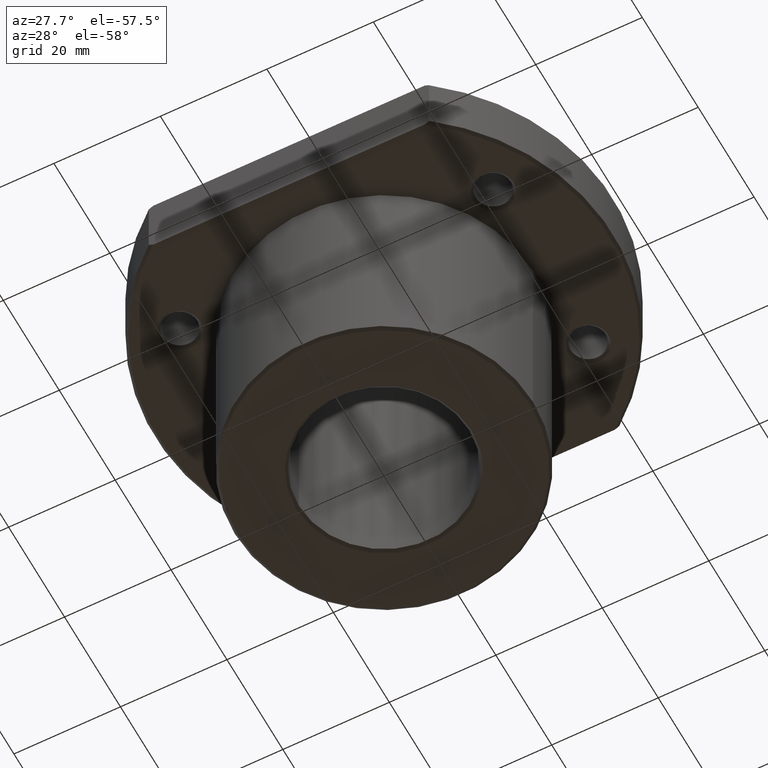
[diagram: clean part render]
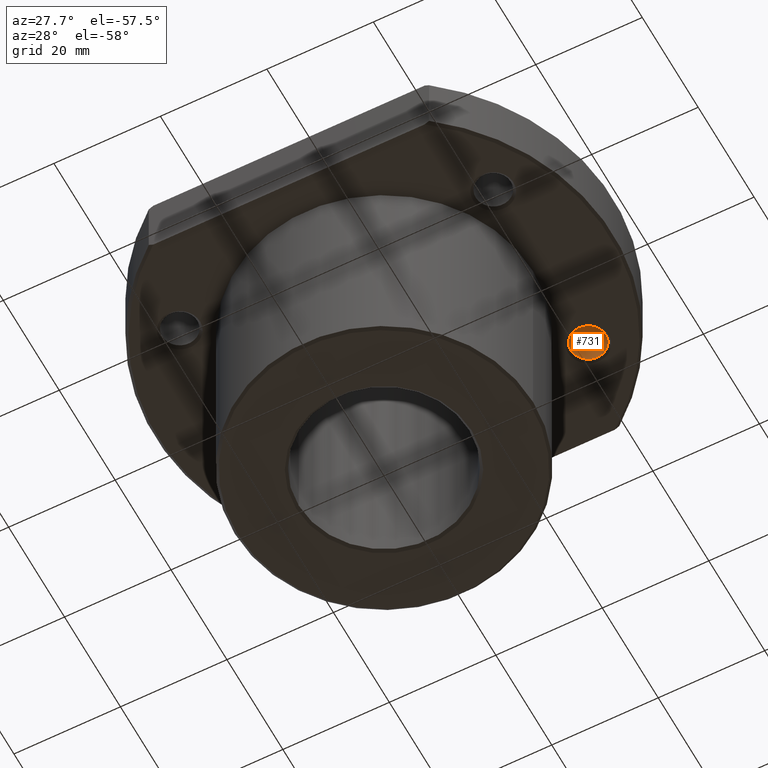
[diagram: same view with one face highlighted and labeled with its STEP entity id]
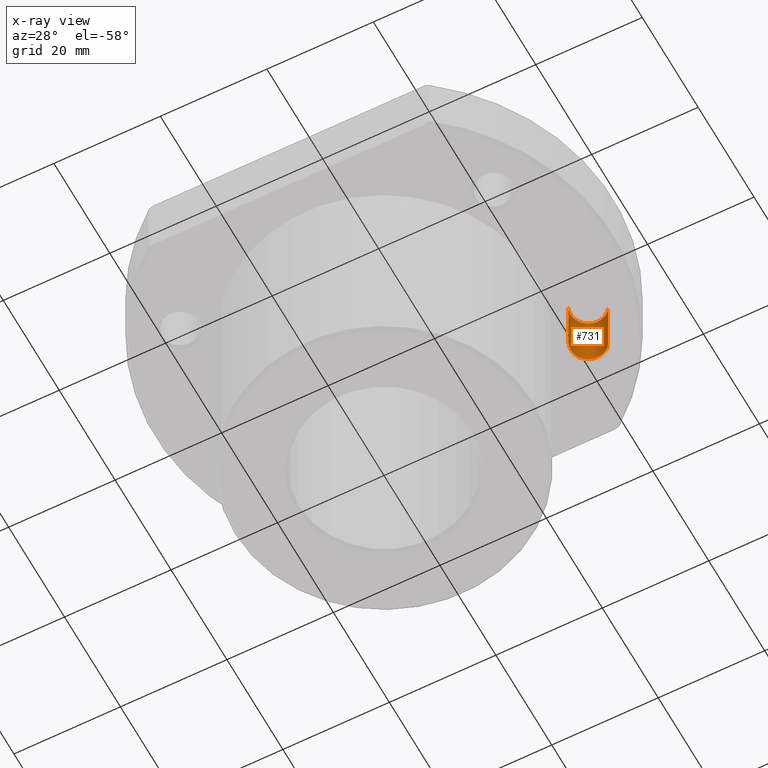
[diagram: x-ray of the same camera — body ghosted, the highlighted face saturated]
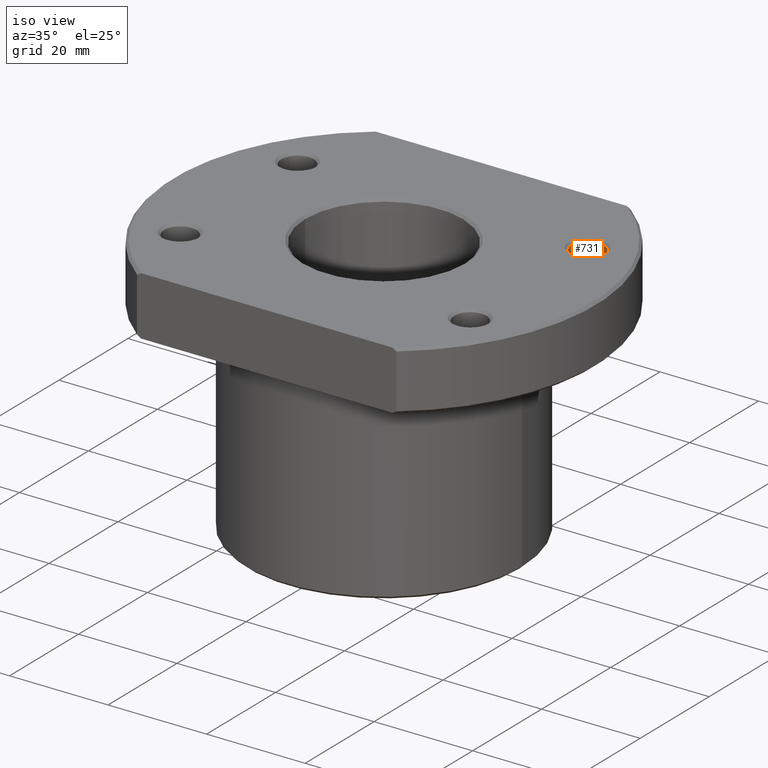
[diagram: same view with one face highlighted and labeled with its STEP entity id]
A machine part, auxiliary view. The second image highlights one B-rep face of the part: STEP entity #731.
The next image is the same camera in x-ray: the body ghosted, the highlighted face saturated — about 10% of this face is hidden behind the body in this view.
A second angle (iso view) of the same face is appended — the face is thin or edge-on in the first view.
In plain terms, the highlighted cylindrical surface (edge-blend (fillet) strip) has radius 3.3 mm, axis along (0, 0, 1).
Its self-contained STEP definition (entity closure, byte-faithful):
#655=AXIS2_PLACEMENT_3D('Circle Axis2P3D',#653,#654,$) ;
#704=AXIS2_PLACEMENT_3D('Cylinder Axis2P3D',#701,#702,#703) ;
#708=AXIS2_PLACEMENT_3D('Circle Axis2P3D',#706,#707,$) ;
#650=CARTESIAN_POINT('Vertex',(32.3027475612,18.65,41.5)) ;
#653=CARTESIAN_POINT('Axis2P3D Location',(29.4448637287,17.,41.5)) ;
#657=CARTESIAN_POINT('Vertex',(26.5869798962,15.35,41.5)) ;
#701=CARTESIAN_POINT('Axis2P3D Location',(29.4448637287,17.,47.)) ;
#706=CARTESIAN_POINT('Axis2P3D Location',(29.4448637287,17.,52.5)) ;
#710=CARTESIAN_POINT('Vertex',(32.3027475612,18.65,52.5)) ;
#712=CARTESIAN_POINT('Vertex',(26.5869798962,15.35,52.5)) ;
#715=CARTESIAN_POINT('Line Origine',(26.5869798962,15.35,47.)) ;
#720=CARTESIAN_POINT('Line Origine',(32.3027475612,18.65,47.)) ;
#654=DIRECTION('Axis2P3D Direction',(2.07601406297E-014,-1.21086428743E-013,1.)) ;
#702=DIRECTION('Axis2P3D Direction',(0.,0.,1.)) ;
#703=DIRECTION('Axis2P3D XDirection',(-0.866025403784,-0.5,0.)) ;
#707=DIRECTION('Axis2P3D Direction',(0.,0.,1.)) ;
#716=DIRECTION('Vector Direction',(0.,0.,1.)) ;
#721=DIRECTION('Vector Direction',(0.,0.,1.)) ;
#717=VECTOR('Line Direction',#716,1.) ;
#722=VECTOR('Line Direction',#721,1.) ;
#726=ORIENTED_EDGE('',*,*,#714,.T.) ;
#727=ORIENTED_EDGE('',*,*,#719,.F.) ;
#728=ORIENTED_EDGE('',*,*,#659,.F.) ;
#729=ORIENTED_EDGE('',*,*,#724,.T.) ;
#731=ADVANCED_FACE('',(#730),#705,.F.) ;
#656=CIRCLE('generated circle',#655,3.3) ;
#709=CIRCLE('generated circle',#708,3.3) ;
#705=CYLINDRICAL_SURFACE('generated cylinder',#704,3.3) ;
#659=EDGE_CURVE('',#651,#658,#656,.T.) ;
#714=EDGE_CURVE('',#711,#713,#709,.T.) ;
#719=EDGE_CURVE('',#658,#713,#718,.T.) ;
#724=EDGE_CURVE('',#651,#711,#723,.T.) ;
#725=EDGE_LOOP('',(#726,#727,#728,#729)) ;
#730=FACE_OUTER_BOUND('',#725,.T.) ;
#718=LINE('Line',#715,#717) ;
#723=LINE('Line',#720,#722) ;
#651=VERTEX_POINT('',#650) ;
#658=VERTEX_POINT('',#657) ;
#711=VERTEX_POINT('',#710) ;
#713=VERTEX_POINT('',#712) ;